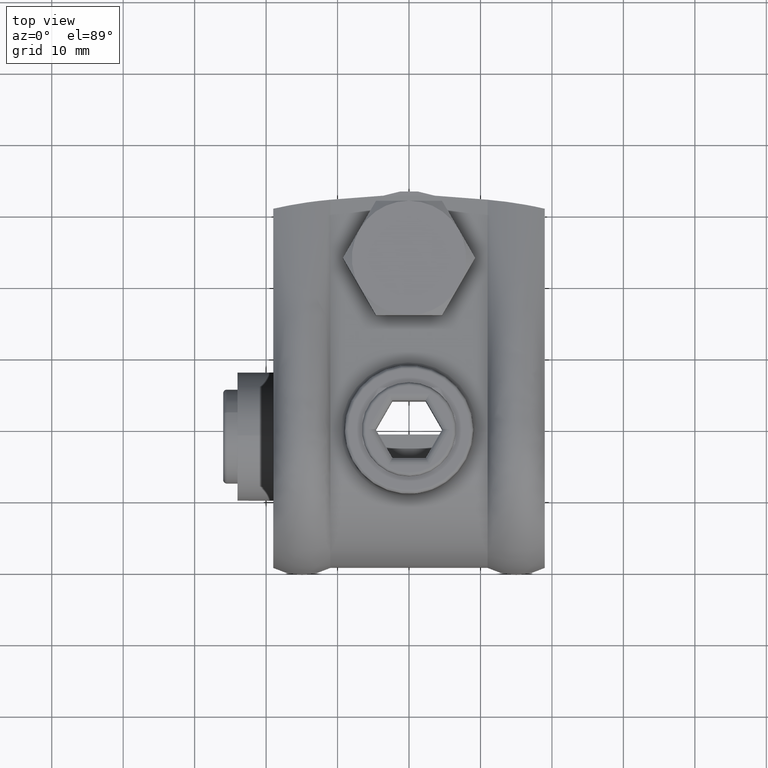
[diagram: clean part render]
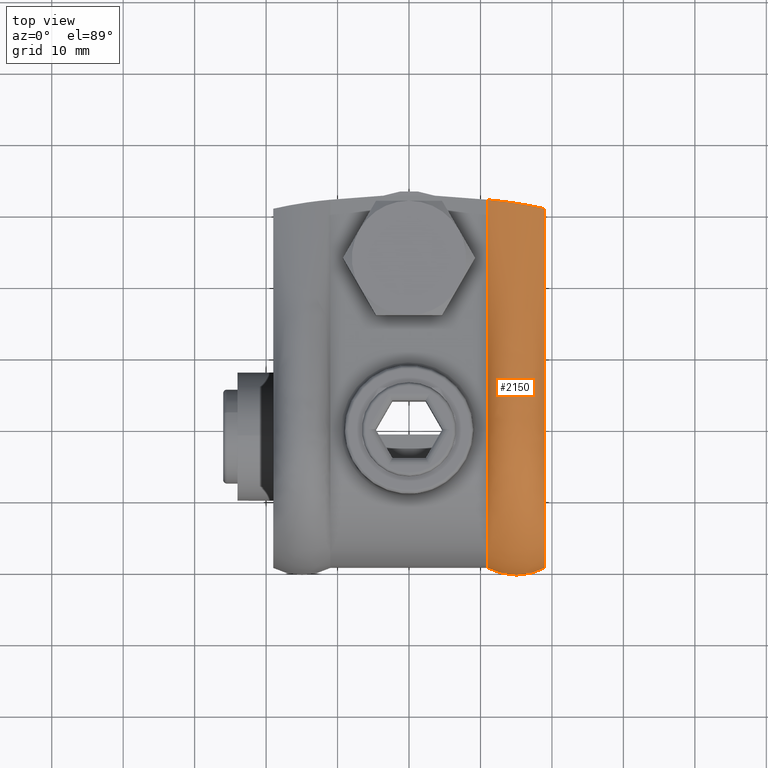
[diagram: same view with one face highlighted and labeled with its STEP entity id]
A machine part, top view. The second image highlights one B-rep face of the part: STEP entity #2150.
In plain terms, the highlighted face is a freeform B-spline surface patch.
Its self-contained STEP definition (entity closure, byte-faithful):
#2 = B_SPLINE_CURVE_WITH_KNOTS ( 'NONE', 3,
 ( #551, #5725, #2985, #1032 ),
 .UNSPECIFIED., .F., .F.,
 ( 4, 4 ),
 ( 0.000000000000000000, 1.000000000000000000 ),
 .UNSPECIFIED. ) ;
#13 = CARTESIAN_POINT ( 'NONE',  ( 12.93324878174066939, -0.7669906584711864150, 0.000000000000000000 ) ) ;
#50 = CARTESIAN_POINT ( 'NONE',  ( 11.00000000000000000, 8.673617379884035472E-16, 0.000000000000000000 ) ) ;
#74 = CARTESIAN_POINT ( 'NONE',  ( 13.95884729768393662, -0.9573230604064668636, 0.000000000000000000 ) ) ;
#182 = DIRECTION ( 'NONE',  ( -1.000000000000000000, 0.000000000000000000, 0.000000000000000000 ) ) ;
#274 = CARTESIAN_POINT ( 'NONE',  ( 18.99999999999999645, 3.708164086787005598, 10.77196649377486182 ) ) ;
#275 = DIRECTION ( 'NONE',  ( 0.000000000000000000, 0.000000000000000000, 1.000000000000000000 ) ) ;
#282 = CARTESIAN_POINT ( 'NONE',  ( 11.27549562224355384, -0.1467983766225591513, 3.357340799636816087 ) ) ;
#318 = DIRECTION ( 'NONE',  ( 1.000000000000000000, 0.000000000000000000, 0.000000000000000000 ) ) ;
#329 = CARTESIAN_POINT ( 'NONE',  ( 18.99999999999999645, 1.585562590162695962, 7.278782997752510475 ) ) ;
#370 = CARTESIAN_POINT ( 'NONE',  ( 11.00000000000002309, 10.16916739162244632, 16.45714802615574257 ) ) ;
#418 = CARTESIAN_POINT ( 'NONE',  ( 10.99999999999999822, 3.708164086786109870, 10.77196649377372140 ) ) ;
#419 = ORIENTED_EDGE ( 'NONE', *, *, #2060, .F. ) ;
#421 = CARTESIAN_POINT ( 'NONE',  ( 19.00000000000001776, 6.605413245440655778, 13.69518088406941025 ) ) ;
#432 = LINE ( 'NONE', #4325, #5856 ) ;
#443 = CARTESIAN_POINT ( 'NONE',  ( 18.69377667353264272, -0.1633191074492585104, 0.000000000000000000 ) ) ;
#446 = CARTESIAN_POINT ( 'NONE',  ( 19.00000000000000000, 50.00487189948034938, 15.26977115185777834 ) ) ;
#452 = B_SPLINE_CURVE_WITH_KNOTS ( 'NONE', 3,
 ( #2558, #3550, #1133, #5836, #2162 ),
 .UNSPECIFIED., .F., .F.,
 ( 4, 1, 4 ),
 ( 0.5313859512092171666, 0.7351721522233748418, 0.7437817400886279628 ),
 .UNSPECIFIED. ) ;
#455 = ORIENTED_EDGE ( 'NONE', *, *, #4530, .F. ) ;
#462 = CARTESIAN_POINT ( 'NONE',  ( 18.99999999999989342, 29.81382552701485622, 16.68166665448771013 ) ) ;
#482 = CARTESIAN_POINT ( 'NONE',  ( 18.25012946058043894, 1.320801534343300387, 9.253586373780477103 ) ) ;
#545 = CARTESIAN_POINT ( 'NONE',  ( 13.82563644225085220, 1.053532841221715755, 9.941441627715214224 ) ) ;
#551 = CARTESIAN_POINT ( 'NONE',  ( 18.99999999999999645, 1.585562590162695962, 7.278782997752510475 ) ) ;
#568 = CARTESIAN_POINT ( 'NONE',  ( 11.74987053941954507, 1.320801534343300387, 9.253586373780459340 ) ) ;
#596 = VERTEX_POINT ( 'NONE', #4180 ) ;
#598 = EDGE_CURVE ( 'NONE', #5754, #1070, #5497, .T. ) ;
#653 = CARTESIAN_POINT ( 'NONE',  ( 19.00000000000001776, 6.605413245440655778, 13.69518088406941025 ) ) ;
#662 = CARTESIAN_POINT ( 'NONE',  ( 11.74357188628183479, 41.00695700237550056, 16.68711290631614474 ) ) ;
#701 = VERTEX_POINT ( 'NONE', #421 ) ;
#704 = CARTESIAN_POINT ( 'NONE',  ( 11.00000000000001776, 40.90691276350739969, 15.90596242942865857 ) ) ;
#786 = CARTESIAN_POINT ( 'NONE',  ( 10.99999999999999822, 0.4102125509191136277, 3.766850799439348307 ) ) ;
#850 = B_SPLINE_CURVE_WITH_KNOTS ( 'NONE', 3,
 ( #1068, #3373, #5267, #4338 ),
 .UNSPECIFIED., .F., .F.,
 ( 4, 4 ),
 ( 0.000000000000000000, 1.000000000000000000 ),
 .UNSPECIFIED. ) ;
#908 = CARTESIAN_POINT ( 'NONE',  ( 19.00000000000000000, 8.673617379884035472E-16, 0.000000000000000000 ) ) ;
#924 = DIRECTION ( 'NONE',  ( 0.000000000000000000, 0.000000000000000000, 1.000000000000000000 ) ) ;
#925 = CARTESIAN_POINT ( 'NONE',  ( 18.01554422841960701, 52.01593165047179212, 15.35809142068520394 ) ) ;
#934 = CARTESIAN_POINT ( 'NONE',  ( 10.99999999999999822, 0.4102125509191136277, 3.766850799439348307 ) ) ;
#944 = CARTESIAN_POINT ( 'NONE',  ( 16.34913215273135378, 30.21937879956113093, 19.73156599143073819 ) ) ;
#947 = CARTESIAN_POINT ( 'NONE',  ( 15.36921980864572745, 50.71132994284781859, 15.88658057769131204 ) ) ;
#961 = CARTESIAN_POINT ( 'NONE',  ( 17.53833352317976946, 14.55838970757417172, 19.91316080692206469 ) ) ;
#976 = CARTESIAN_POINT ( 'NONE',  ( 11.00000000000000533, 51.26916237503398577, 15.18136334953177169 ) ) ;
#1010 = ORIENTED_EDGE ( 'NONE', *, *, #2401, .T. ) ;
#1026 = CARTESIAN_POINT ( 'NONE',  ( 16.29310519168840798, 8.196468427991705497, 18.21356877886244519 ) ) ;
#1032 = CARTESIAN_POINT ( 'NONE',  ( 19.00000000000000000, 0.4102125509156430150, 3.766850799423683505 ) ) ;
#1048 = CARTESIAN_POINT ( 'NONE',  ( 14.99999999999985612, 30.24844238291198550, 19.96316145573484135 ) ) ;
#1068 = CARTESIAN_POINT ( 'NONE',  ( 19.00000000000000000, 0.4102125509156430150, 3.766850799423683505 ) ) ;
#1070 = VERTEX_POINT ( 'NONE', #786 ) ;
#1093 = CARTESIAN_POINT ( 'NONE',  ( 18.99999999999996803, 5.536186545715501062, 12.84160233230528014 ) ) ;
#1133 = CARTESIAN_POINT ( 'NONE',  ( 19.00000000000002487, 10.16916739162332739, 16.45714802615601258 ) ) ;
#1146 = CARTESIAN_POINT ( 'NONE',  ( 11.86681117270724251, -0.3851381436596600372, 3.490039711904403763 ) ) ;
#1208 = VERTEX_POINT ( 'NONE', #5607 ) ;
#1348 = VERTEX_POINT ( 'NONE', #3866 ) ;
#1361 = CARTESIAN_POINT ( 'NONE',  ( 11.00000000000001066, 6.605413245438570335, 13.69518088406774758 ) ) ;
#1386 = CARTESIAN_POINT ( 'NONE',  ( 18.77668621334600019, 40.94228860852964402, 16.17730441827805876 ) ) ;
#1407 = CARTESIAN_POINT ( 'NONE',  ( 14.34899147219736548, 50.87151231506339144, 15.85778559040237212 ) ) ;
#1425 = CARTESIAN_POINT ( 'NONE',  ( 18.49731199901666656, 29.99798235427927651, 18.01613439194703759 ) ) ;
#1428 = CARTESIAN_POINT ( 'NONE',  ( 17.71453596710914979, 50.28592858903150642, 15.66251767392195404 ) ) ;
#1443 = CARTESIAN_POINT ( 'NONE',  ( 16.17975809096661521, 41.12639739660328786, 17.66984758428064239 ) ) ;
#1465 = CARTESIAN_POINT ( 'NONE',  ( 16.04115270231606516, -0.9573230604064673077, 0.000000000000000000 ) ) ;
#1507 = CARTESIAN_POINT ( 'NONE',  ( 11.51902110100270704, 14.51620924991978612, 18.96327610404621922 ) ) ;
#1518 = ORIENTED_EDGE ( 'NONE', *, *, #1679, .T. ) ;
#1521 = CARTESIAN_POINT ( 'NONE',  ( 18.99999999999996447, 4.558321255787853410, 11.85709541463002914 ) ) ;
#1539 = DIRECTION ( 'NONE',  ( 0.000000000000000000, -0.9975640502598245307, 0.06975647374412156931 ) ) ;
#1578 = CARTESIAN_POINT ( 'NONE',  ( 18.99999999999999645, 3.708164086787005598, 10.77196649377486182 ) ) ;
#1611 = CARTESIAN_POINT ( 'NONE',  ( 11.32643185745417114, 52.00578304388412931, 15.21295958490434153 ) ) ;
#1626 = CARTESIAN_POINT ( 'NONE',  ( 11.12019571585375388, 29.87879417317522268, 17.14164925165168185 ) ) ;
#1679 = EDGE_CURVE ( 'NONE', #5754, #2238, #5855, .T. ) ;
#1720 = CARTESIAN_POINT ( 'NONE',  ( 11.00000000000000355, -0.01170187992838669401, 3.287851853148751946 ) ) ;
#1849 = CARTESIAN_POINT ( 'NONE',  ( 11.00160829178781619, 5.524280500886233014, 12.83513423127580388 ) ) ;
#1853 = CARTESIAN_POINT ( 'NONE',  ( 19.00000000000004263, 14.46654583342150246, 17.75485299546611984 ) ) ;
#1857 = CARTESIAN_POINT ( 'NONE',  ( 11.00000000000000533, 51.26916237503398577, 15.18136334953177169 ) ) ;
#1873 = CARTESIAN_POINT ( 'NONE',  ( 18.48097889899740309, 14.51620924991978612, 18.96327610404625830 ) ) ;
#1877 = CARTESIAN_POINT ( 'NONE',  ( 12.32189425657196225, 51.13481646510744838, 15.54561124655295679 ) ) ;
#1883 = AXIS2_PLACEMENT_3D ( 'NONE', #5052, #4118, #924 ) ;
#1905 = CARTESIAN_POINT ( 'NONE',  ( 11.00000000000001243, 40.41968768019671643, 15.94003252620347943 ) ) ;
#1911 = CARTESIAN_POINT ( 'NONE',  ( 18.41844245740395536, 8.235513619208401082, 16.90105038724432163 ) ) ;
#1935 = CARTESIAN_POINT ( 'NONE',  ( 16.17436355774913892, 1.053532841221716643, 9.941441627715230211 ) ) ;
#1948 = CARTESIAN_POINT ( 'NONE',  ( 11.00000000000000178, 18.72073829052212091, 17.45737087954692868 ) ) ;
#1955 = CARTESIAN_POINT ( 'NONE',  ( 15.00000000000000178, -0.8520395538732176144, 3.787532752432077654 ) ) ;
#2020 = EDGE_CURVE ( 'NONE', #1070, #1348, #3317, .T. ) ;
#2060 = EDGE_CURVE ( 'NONE', #2672, #1208, #2321, .T. ) ;
#2150 = ADVANCED_FACE ( 'NONE', ( #4443 ), #4239, .T. ) ;
#2154 = CARTESIAN_POINT ( 'NONE',  ( 10.99999999999989519, 29.81382552701485622, 16.68166665448770658 ) ) ;
#2162 = CARTESIAN_POINT ( 'NONE',  ( 19.00000000000001776, 6.605413245440655778, 13.69518088406941025 ) ) ;
#2199 = CIRCLE ( 'NONE', #3839, 17.50000000000000000 ) ;
#2237 = EDGE_CURVE ( 'NONE', #2955, #596, #2361, .T. ) ;
#2238 = VERTEX_POINT ( 'NONE', #5456 ) ;
#2263 = CARTESIAN_POINT ( 'NONE',  ( 19.00000000000000000, 2.156242108920104705, 8.526335787675479949 ) ) ;
#2305 = CARTESIAN_POINT ( 'NONE',  ( 11.00000000000004086, 14.46654583342149181, 17.75485299546610918 ) ) ;
#2321 = B_SPLINE_CURVE_WITH_KNOTS ( 'NONE', 3,
 ( #5931, #5011, #2263, #329 ),
 .UNSPECIFIED., .F., .F.,
 ( 4, 4 ),
 ( 0.000000000000000000, 1.000000000000000000 ),
 .UNSPECIFIED. ) ;
#2353 = CARTESIAN_POINT ( 'NONE',  ( 17.55700426211445730, 30.13419283111198155, 19.06005429703083109 ) ) ;
#2361 = B_SPLINE_CURVE_WITH_KNOTS ( 'NONE', 3,
 ( #418, #3698, #1849, #3855 ),
 .UNSPECIFIED., .F., .F.,
 ( 4, 4 ),
 ( 0.000000000000000000, 0.004115730197538991844 ),
 .UNSPECIFIED. ) ;
#2372 = CARTESIAN_POINT ( 'NONE',  ( 18.06124136145699666, -0.4522743180965986820, 0.000000000000000000 ) ) ;
#2390 = CARTESIAN_POINT ( 'NONE',  ( 18.13318882729276993, -0.3851381436596602592, 3.490039711904410424 ) ) ;
#2393 = CARTESIAN_POINT ( 'NONE',  ( 11.00000000000000533, 51.26916237503398577, 15.18136334953177169 ) ) ;
#2401 = EDGE_CURVE ( 'NONE', #3247, #3546, #3712, .T. ) ;
#2413 = CARTESIAN_POINT ( 'NONE',  ( 13.82024190903344874, 41.12639739660330207, 17.66984758428062108 ) ) ;
#2432 = CARTESIAN_POINT ( 'NONE',  ( 14.99999999999997158, 1.020040581065709162, 10.03461311704333703 ) ) ;
#2449 = CARTESIAN_POINT ( 'NONE',  ( 11.98445577158038411, 52.01593165047179923, 15.35809142068520572 ) ) ;
#2558 = CARTESIAN_POINT ( 'NONE',  ( 19.00000000000000000, 18.72073829052212446, 17.45737087954693223 ) ) ;
#2599 = ORIENTED_EDGE ( 'NONE', *, *, #2991, .F. ) ;
#2618 = ORIENTED_EDGE ( 'NONE', *, *, #3669, .F. ) ;
#2630 = ORIENTED_EDGE ( 'NONE', *, *, #598, .F. ) ;
#2651 = CARTESIAN_POINT ( 'NONE',  ( 11.12701567462422148, 14.48303241611980141, 18.17052641561863879 ) ) ;
#2672 = VERTEX_POINT ( 'NONE', #274 ) ;
#2800 = CARTESIAN_POINT ( 'NONE',  ( 19.00000000000001776, 8.281773303834764732, 15.88720038948827984 ) ) ;
#2801 = CARTESIAN_POINT ( 'NONE',  ( 16.38598011783950525, 50.53734314128025318, 15.84427109484813556 ) ) ;
#2818 = CARTESIAN_POINT ( 'NONE',  ( 18.67356814254582531, 52.00578304388412931, 15.21295958490434153 ) ) ;
#2835 = ORIENTED_EDGE ( 'NONE', *, *, #2020, .F. ) ;
#2894 = CARTESIAN_POINT ( 'NONE',  ( 12.53198612279229529, 8.209783306032230499, 17.69891754873356859 ) ) ;
#2910 = CARTESIAN_POINT ( 'NONE',  ( 15.00000000000000355, -1.021393276764280156, 0.000000000000000000 ) ) ;
#2955 = VERTEX_POINT ( 'NONE', #3829 ) ;
#2985 = CARTESIAN_POINT ( 'NONE',  ( 19.00000000000000000, 0.6789286478054341600, 4.979007224030184808 ) ) ;
#2991 = EDGE_CURVE ( 'NONE', #4758, #3527, #432, .T. ) ;
#3014 = CARTESIAN_POINT ( 'NONE',  ( 19.00000000000000000, 0.4102125509156430150, 3.766850799423683505 ) ) ;
#3065 = CARTESIAN_POINT ( 'NONE',  ( 11.22555199810518012, 1.476872913450944846, 8.905203772631043790 ) ) ;
#3178 = ORIENTED_EDGE ( 'NONE', *, *, #3810, .F. ) ;
#3207 = CARTESIAN_POINT ( 'NONE',  ( 19.00000000000000000, 50.00487189948034938, 15.26977115185777834 ) ) ;
#3247 = VERTEX_POINT ( 'NONE', #1857 ) ;
#3285 = CARTESIAN_POINT ( 'NONE',  ( 18.99999999999998579, 1.566097468216475885, 8.722770175286797212 ) ) ;
#3296 = CARTESIAN_POINT ( 'NONE',  ( 10.99999999999999645, 1.585562590209064870, 7.278782997854189141 ) ) ;
#3308 = CARTESIAN_POINT ( 'NONE',  ( 12.72108241870255796, 1.153517731091010301, 9.671665135663166879 ) ) ;
#3309 = CARTESIAN_POINT ( 'NONE',  ( 18.36444555033049753, 50.14981037619649840, 15.50187255672222442 ) ) ;
#3317 = B_SPLINE_CURVE_WITH_KNOTS ( 'NONE', 3,
 ( #934, #3732, #4194, #3296 ),
 .UNSPECIFIED., .F., .F.,
 ( 4, 4 ),
 ( 0.000000000000000000, 0.003700962858357491336 ),
 .UNSPECIFIED. ) ;
#3346 = CARTESIAN_POINT ( 'NONE',  ( 13.66271469638275882, 14.58655063778637384, 20.52554169241040327 ) ) ;
#3352 = EDGE_CURVE ( 'NONE', #3247, #4758, #4172, .T. ) ;
#3369 = CARTESIAN_POINT ( 'NONE',  ( 12.85243462655027002, -0.6436974393241164938, 3.649285887692099717 ) ) ;
#3373 = CARTESIAN_POINT ( 'NONE',  ( 19.00000000000000000, 0.1368170948551096222, 2.526116006505544576 ) ) ;
#3468 = CARTESIAN_POINT ( 'NONE',  ( 12.98313390639291676, 52.02685108032054018, 15.51424654266559955 ) ) ;
#3473 = ORIENTED_EDGE ( 'NONE', *, *, #4957, .F. ) ;
#3522 = CARTESIAN_POINT ( 'NONE',  ( 11.30622332646735906, -0.1633191074492577055, 0.000000000000000000 ) ) ;
#3527 = VERTEX_POINT ( 'NONE', #4251 ) ;
#3542 = CARTESIAN_POINT ( 'NONE',  ( 10.99999999999998579, 1.566097468216475885, 8.722770175286797212 ) ) ;
#3546 = VERTEX_POINT ( 'NONE', #4729 ) ;
#3550 = CARTESIAN_POINT ( 'NONE',  ( 19.00000000000004263, 14.46654583342149891, 17.75485299546611984 ) ) ;
#3619 = B_SPLINE_CURVE_WITH_KNOTS ( 'NONE', 3,
 ( #653, #1093, #1521, #1578 ),
 .UNSPECIFIED., .F., .F.,
 ( 4, 4 ),
 ( 0.000000000000000000, 0.004115730197540207885 ),
 .UNSPECIFIED. ) ;
#3669 = EDGE_CURVE ( 'NONE', #1208, #4481, #2, .T. ) ;
#3698 = CARTESIAN_POINT ( 'NONE',  ( 11.00216733855063467, 4.558530781335409898, 11.86072943451113737 ) ) ;
#3701 = CARTESIAN_POINT ( 'NONE',  ( 18.99999999999999289, 52.00000000000000711, 15.13025820436952884 ) ) ;
#3712 = B_SPLINE_CURVE_WITH_KNOTS ( 'NONE', 3,
 ( #976, #1905, #5175, #1948 ),
 .UNSPECIFIED., .F., .F.,
 ( 4, 4 ),
 ( 0.01166963527954272516, 0.5313859512092172777 ),
 .UNSPECIFIED. ) ;
#3732 = CARTESIAN_POINT ( 'NONE',  ( 11.00267859745285115, 0.6784639656304650712, 4.983877940793752792 ) ) ;
#3740 = CARTESIAN_POINT ( 'NONE',  ( 17.01686609360707081, 52.02685108032051176, 15.51424654266559777 ) ) ;
#3795 = CARTESIAN_POINT ( 'NONE',  ( 14.99999999999999822, 41.14202610204451105, 17.80133191410946836 ) ) ;
#3810 = EDGE_CURVE ( 'NONE', #1348, #2955, #2199, .T. ) ;
#3818 = CARTESIAN_POINT ( 'NONE',  ( 11.50268800098314692, 29.99798235427928006, 18.01613439194699495 ) ) ;
#3829 = CARTESIAN_POINT ( 'NONE',  ( 10.99999999999999822, 3.708164086786109870, 10.77196649377372140 ) ) ;
#3839 = AXIS2_PLACEMENT_3D ( 'NONE', #5343, #182, #4888 ) ;
#3842 = CARTESIAN_POINT ( 'NONE',  ( 11.93875863854300690, -0.4522743180965979604, 0.000000000000000000 ) ) ;
#3855 = CARTESIAN_POINT ( 'NONE',  ( 11.00000000000001066, 6.605413245438570335, 13.69518088406774758 ) ) ;
#3866 = CARTESIAN_POINT ( 'NONE',  ( 10.99999999999999645, 1.585562590209064870, 7.278782997854189141 ) ) ;
#3935 = CARTESIAN_POINT ( 'NONE',  ( 16.09189270930804838, -0.7996164792324654824, 3.752043737632260623 ) ) ;
#4034 = CARTESIAN_POINT ( 'NONE',  ( 11.15368749045152974, 8.263842222299080831, 16.23576942357077968 ) ) ;
#4118 = DIRECTION ( 'NONE',  ( -1.000000000000000000, 0.000000000000000000, 0.000000000000000000 ) ) ;
#4163 = CARTESIAN_POINT ( 'NONE',  ( 18.87298432537586024, 14.48303241611980141, 18.17052641561864235 ) ) ;
#4172 = B_SPLINE_CURVE_WITH_KNOTS ( 'NONE', 3,
 ( #2393, #4664, #1877, #5121, #1407, #947, #5597, #2801, #6068, #1428, #3309, #446 ),
 .UNSPECIFIED., .F., .F.,
 ( 4, 2, 2, 2, 2, 4 ),
 ( 3.469446951953614189E-18, 0.002064522556881398258, 0.004129045113762793914, 0.005161306392203493694, 0.006193567670644196076, 0.008258090227525601706 ),
 .UNSPECIFIED. ) ;
#4180 = CARTESIAN_POINT ( 'NONE',  ( 11.00000000000001066, 6.605413245438570335, 13.69518088406774758 ) ) ;
#4194 = CARTESIAN_POINT ( 'NONE',  ( 11.00208350090884579, 1.071196461756056095, 6.154165385350315987 ) ) ;
#4223 = CARTESIAN_POINT ( 'NONE',  ( 17.46801387720769583, 8.209783306032232275, 17.69891754873354017 ) ) ;
#4239 = B_SPLINE_SURFACE_WITH_KNOTS ( 'NONE', 3, 3, ( 
 ( #3701, #6112, #462, #1853, #2800, #3285, #6065, #908 ),
 ( #2818, #1386, #4704, #4163, #5118, #5093, #4640, #443 ),
 ( #925, #4660, #1425, #1873, #1911, #482, #2390, #2372 ),
 ( #3740, #5141, #2353, #961, #4223, #5615, #5182, #4682 ),
 ( #6088, #1443, #944, #5830, #1026, #1935, #3935, #1465 ),
 ( #5223, #3795, #1048, #5808, #4271, #2432, #1955, #2910 ),
 ( #4393, #2413, #5671, #3346, #4293, #545, #5695, #74 ),
 ( #3468, #5360, #5240, #4863, #2894, #3308, #3369, #13 ),
 ( #2449, #662, #3818, #1507, #5721, #568, #1146, #3842 ),
 ( #1611, #4413, #1626, #2651, #4034, #3065, #282, #3522 ),
 ( #5889, #704, #2154, #4468, #4507, #3542, #1720, #5398 ) ),
 .UNSPECIFIED., .F., .F., .F.,
 ( 4, 1, 1, 1, 1, 1, 1, 1, 4 ),
 ( 4, 2, 1, 1, 4 ),
 ( 0.000000000000000000, 0.06239737649948493697, 0.1247947529989698739, 0.1871921294984548734, 0.2495895059979397479, 0.3119868824974246779, 0.3743842589969097467, 0.4367816354963945935, 0.4991790119958794958 ),
 ( 0.000000000000000000, 0.5313859512092170556, 0.7351721522233748418, 0.8370652527304536239, 1.000000000000000000 ),
 .UNSPECIFIED. ) ;
#4251 = CARTESIAN_POINT ( 'NONE',  ( 19.00000000000000000, 18.72073829052212446, 17.45737087954693223 ) ) ;
#4271 = CARTESIAN_POINT ( 'NONE',  ( 14.99999999999998757, 8.192298899999221007, 18.39128194779238257 ) ) ;
#4293 = CARTESIAN_POINT ( 'NONE',  ( 13.70689480831167195, 8.196468427991705497, 18.21356877886241321 ) ) ;
#4325 = CARTESIAN_POINT ( 'NONE',  ( 19.00000000000000000, 52.00000000000000000, 15.13025820436953417 ) ) ;
#4338 = CARTESIAN_POINT ( 'NONE',  ( 19.00000000000000000, 0.000000000000000000, 0.000000000000000000 ) ) ;
#4393 = CARTESIAN_POINT ( 'NONE',  ( 13.98961597079825836, 52.03341599364554071, 15.60812917713046488 ) ) ;
#4413 = CARTESIAN_POINT ( 'NONE',  ( 11.22331378665403356, 40.94228860852964402, 16.17730441827805521 ) ) ;
#4439 = EDGE_CURVE ( 'NONE', #701, #2672, #3619, .T. ) ;
#4443 = FACE_OUTER_BOUND ( 'NONE', #6054, .T. ) ;
#4468 = CARTESIAN_POINT ( 'NONE',  ( 11.00000000000004086, 14.46654583342150246, 17.75485299546611628 ) ) ;
#4480 = CARTESIAN_POINT ( 'NONE',  ( 15.00000000000000000, 7.500000000000000000, 0.000000000000000000 ) ) ;
#4481 = VERTEX_POINT ( 'NONE', #3014 ) ;
#4507 = CARTESIAN_POINT ( 'NONE',  ( 11.00000000000001599, 8.281773303834764732, 15.88720038948827984 ) ) ;
#4530 = EDGE_CURVE ( 'NONE', #3527, #701, #452, .T. ) ;
#4621 = CARTESIAN_POINT ( 'NONE',  ( 11.00000000000001066, 6.742794983108129081, 13.80485463679858071 ) ) ;
#4640 = CARTESIAN_POINT ( 'NONE',  ( 18.72450437775645682, -0.1467983766225600395, 3.357340799636817419 ) ) ;
#4660 = CARTESIAN_POINT ( 'NONE',  ( 18.25642811371820784, 41.00695700237549346, 16.68711290631616606 ) ) ;
#4664 = CARTESIAN_POINT ( 'NONE',  ( 11.65719622865602290, 51.20719165156234709, 15.38239503860121360 ) ) ;
#4682 = CARTESIAN_POINT ( 'NONE',  ( 17.06675121825933061, -0.7669906584711870812, 0.000000000000000000 ) ) ;
#4704 = CARTESIAN_POINT ( 'NONE',  ( 18.87980428414603651, 29.87879417317522268, 17.14164925165168540 ) ) ;
#4729 = CARTESIAN_POINT ( 'NONE',  ( 11.00000000000000178, 18.72073829052212091, 17.45737087954692868 ) ) ;
#4731 = EDGE_CURVE ( 'NONE', #3546, #596, #5987, .T. ) ;
#4758 = VERTEX_POINT ( 'NONE', #3207 ) ;
#4863 = CARTESIAN_POINT ( 'NONE',  ( 12.46166647682026785, 14.55838970757417172, 19.91316080692210022 ) ) ;
#4864 = ORIENTED_EDGE ( 'NONE', *, *, #3352, .F. ) ;
#4888 = DIRECTION ( 'NONE',  ( 0.000000000000000000, 0.000000000000000000, 1.000000000000000000 ) ) ;
#4957 = EDGE_CURVE ( 'NONE', #4481, #2238, #850, .T. ) ;
#5011 = CARTESIAN_POINT ( 'NONE',  ( 19.00000000000000000, 2.863775941128309466, 9.690730286349822364 ) ) ;
#5052 = CARTESIAN_POINT ( 'NONE',  ( 11.00000000000000000, 17.50000000000000000, 2.143131898507868248E-15 ) ) ;
#5093 = CARTESIAN_POINT ( 'NONE',  ( 18.77444800189479679, 1.476872913450944846, 8.905203772631045567 ) ) ;
#5118 = CARTESIAN_POINT ( 'NONE',  ( 18.84631250954850756, 8.263842222299080831, 16.23576942357077968 ) ) ;
#5121 = CARTESIAN_POINT ( 'NONE',  ( 13.66894153539861634, 50.96687540762953006, 15.78369890154428568 ) ) ;
#5141 = CARTESIAN_POINT ( 'NONE',  ( 17.28693517786083333, 41.08052195571620757, 17.28715041984825973 ) ) ;
#5175 = CARTESIAN_POINT ( 'NONE',  ( 10.99999999999989875, 29.57021298535950393, 16.69870170287512323 ) ) ;
#5182 = CARTESIAN_POINT ( 'NONE',  ( 17.14756537344973353, -0.6436974393241164938, 3.649285887692094388 ) ) ;
#5223 = CARTESIAN_POINT ( 'NONE',  ( 15.00000000000000000, 52.03560982117709699, 15.63950237248401187 ) ) ;
#5240 = CARTESIAN_POINT ( 'NONE',  ( 12.44299573788528335, 30.13419283111198865, 19.06005429703087017 ) ) ;
#5267 = CARTESIAN_POINT ( 'NONE',  ( 19.00000000000000000, 7.957788322743297726E-05, 1.270499073364314002 ) ) ;
#5299 = ORIENTED_EDGE ( 'NONE', *, *, #4731, .T. ) ;
#5343 = CARTESIAN_POINT ( 'NONE',  ( 11.00000000000000000, 17.50000000000000000, 2.143131898507868248E-15 ) ) ;
#5360 = CARTESIAN_POINT ( 'NONE',  ( 12.71306482213917199, 41.08052195571622889, 17.28715041984827394 ) ) ;
#5398 = CARTESIAN_POINT ( 'NONE',  ( 11.00000000000000000, 0.000000000000000000, 0.000000000000000000 ) ) ;
#5456 = CARTESIAN_POINT ( 'NONE',  ( 19.00000000000000000, 0.000000000000000000, 0.000000000000000000 ) ) ;
#5479 = AXIS2_PLACEMENT_3D ( 'NONE', #4480, #275, #318 ) ;
#5497 = CIRCLE ( 'NONE', #1883, 17.50000000000000000 ) ;
#5549 = CARTESIAN_POINT ( 'NONE',  ( 11.00000000000000178, 18.72073829052212091, 17.45737087954692868 ) ) ;
#5568 = ORIENTED_EDGE ( 'NONE', *, *, #4439, .F. ) ;
#5597 = CARTESIAN_POINT ( 'NONE',  ( 15.71076449718417400, 50.65483485364072180, 15.88235937128156294 ) ) ;
#5607 = CARTESIAN_POINT ( 'NONE',  ( 18.99999999999999645, 1.585562590162695962, 7.278782997752510475 ) ) ;
#5615 = CARTESIAN_POINT ( 'NONE',  ( 17.27891758129738875, 1.153517731091012077, 9.671665135663150892 ) ) ;
#5671 = CARTESIAN_POINT ( 'NONE',  ( 13.65086784726849523, 30.21937879956113449, 19.73156599143069911 ) ) ;
#5695 = CARTESIAN_POINT ( 'NONE',  ( 13.90810729069196583, -0.7996164792324652604, 3.752043737632253517 ) ) ;
#5721 = CARTESIAN_POINT ( 'NONE',  ( 11.58155754259610326, 8.235513619208401082, 16.90105038724428610 ) ) ;
#5725 = CARTESIAN_POINT ( 'NONE',  ( 19.00000000000000000, 1.070711994221114960, 6.149651290139777515 ) ) ;
#5754 = VERTEX_POINT ( 'NONE', #50 ) ;
#5808 = CARTESIAN_POINT ( 'NONE',  ( 15.00000000000000711, 14.59639867395568480, 20.73695177288143654 ) ) ;
#5830 = CARTESIAN_POINT ( 'NONE',  ( 16.33728530361738152, 14.58655063778637384, 20.52554169241044590 ) ) ;
#5836 = CARTESIAN_POINT ( 'NONE',  ( 19.00000000000001066, 6.742794983109533291, 13.80485463679966962 ) ) ;
#5849 = ORIENTED_EDGE ( 'NONE', *, *, #2237, .F. ) ;
#5855 = CIRCLE ( 'NONE', #5479, 8.500000000000000000 ) ;
#5856 = VECTOR ( 'NONE', #1539, 1000.000000000000000 ) ;
#5889 = CARTESIAN_POINT ( 'NONE',  ( 11.00000000000000000, 52.00000000000001421, 15.13025820436952884 ) ) ;
#5931 = CARTESIAN_POINT ( 'NONE',  ( 18.99999999999999645, 3.708164086787005598, 10.77196649377486182 ) ) ;
#5987 = B_SPLINE_CURVE_WITH_KNOTS ( 'NONE', 3,
 ( #5549, #2305, #370, #4621, #1361 ),
 .UNSPECIFIED., .F., .F.,
 ( 4, 1, 4 ),
 ( 0.5313859512092172777, 0.7351721522233748418, 0.7437817400886714836 ),
 .UNSPECIFIED. ) ;
#6054 = EDGE_LOOP ( 'NONE', ( #4864, #1010, #5299, #5849, #3178, #2835, #2630, #1518, #3473, #2618, #419, #5568, #455, #2599 ) ) ;
#6065 = CARTESIAN_POINT ( 'NONE',  ( 19.00000000000000355, -0.01170187992838582665, 3.287851853148752390 ) ) ;
#6068 = CARTESIAN_POINT ( 'NONE',  ( 16.72052232372775649, 50.47622516138707738, 15.81050846238759355 ) ) ;
#6088 = CARTESIAN_POINT ( 'NONE',  ( 16.01038402920173809, 52.03341599364551939, 15.60812917713046133 ) ) ;
#6112 = CARTESIAN_POINT ( 'NONE',  ( 19.00000000000001421, 40.90691276350739969, 15.90596242942866567 ) ) ;